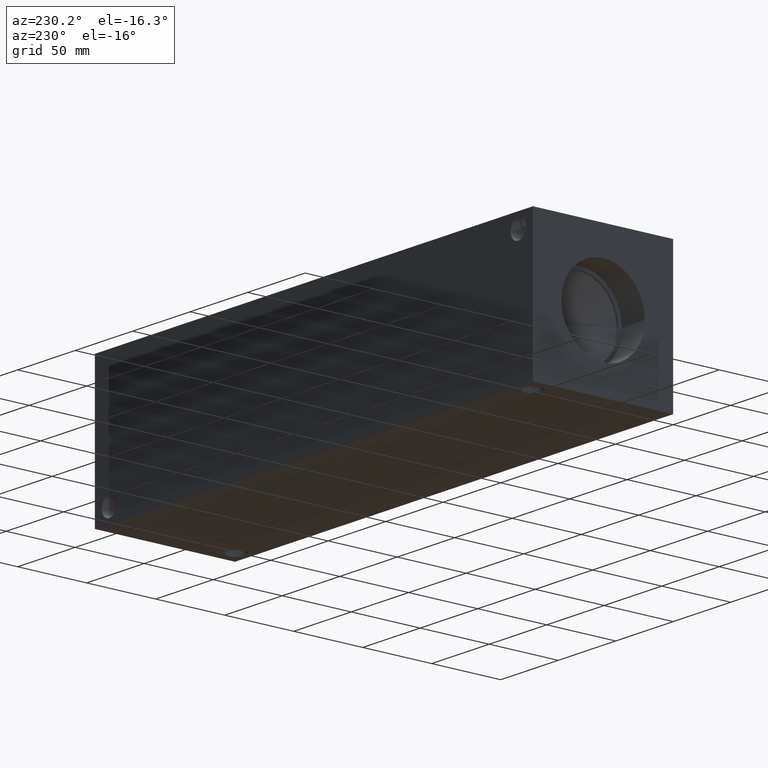
[diagram: clean part render]
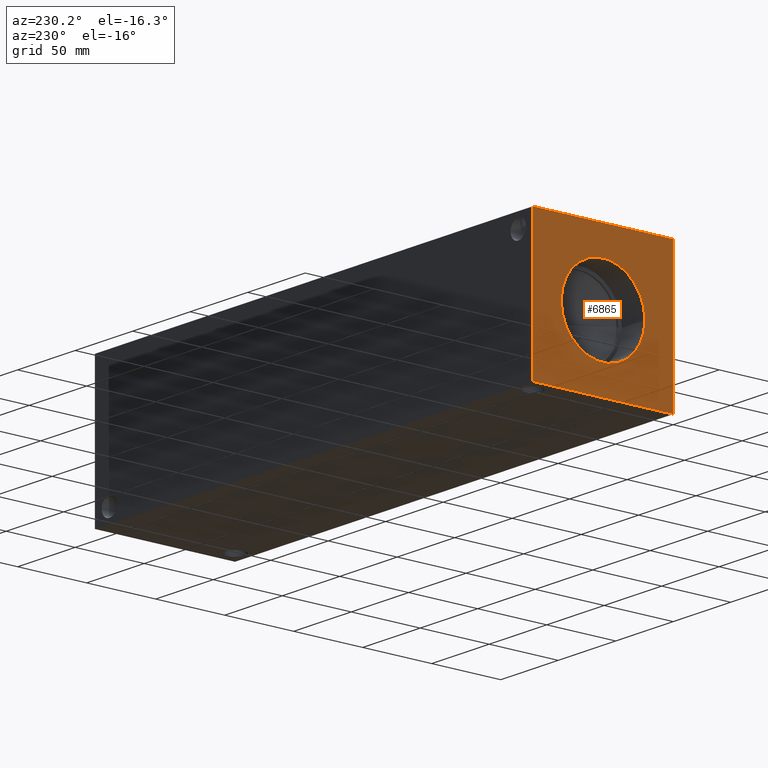
[diagram: same view with one face highlighted and labeled with its STEP entity id]
A machine part, auxiliary view. The second image highlights one B-rep face of the part: STEP entity #6865.
In plain terms, the highlighted planar face has unit normal (-1, 0, 0).
Its self-contained STEP definition (entity closure, byte-faithful):
#90=CIRCLE('',#7182,30.3149);
#91=CIRCLE('',#7183,30.3149);
#130=FACE_BOUND('',#1089,.T.);
#360=PLANE('',#7185);
#705=FACE_OUTER_BOUND('',#1088,.T.);
#1088=EDGE_LOOP('',(#6094,#6095,#6096,#6097));
#1089=EDGE_LOOP('',(#6098,#6099));
#1389=LINE('',#10550,#2085);
#1790=LINE('',#11623,#2486);
#1791=LINE('',#11624,#2487);
#1792=LINE('',#11625,#2488);
#2085=VECTOR('',#7634,10.);
#2486=VECTOR('',#8483,10.);
#2487=VECTOR('',#8484,10.);
#2488=VECTOR('',#8485,10.);
#2986=VERTEX_POINT('',#10543);
#2989=VERTEX_POINT('',#10548);
#3306=VERTEX_POINT('',#11613);
#3307=VERTEX_POINT('',#11614);
#3308=VERTEX_POINT('',#11621);
#3309=VERTEX_POINT('',#11622);
#3771=EDGE_CURVE('',#2989,#2986,#1389,.T.);
#4239=EDGE_CURVE('',#3306,#3307,#90,.T.);
#4240=EDGE_CURVE('',#3307,#3306,#91,.T.);
#4243=EDGE_CURVE('',#3308,#3309,#1790,.T.);
#4244=EDGE_CURVE('',#3309,#2986,#1791,.T.);
#4245=EDGE_CURVE('',#3308,#2989,#1792,.T.);
#6094=ORIENTED_EDGE('',*,*,#4243,.T.);
#6095=ORIENTED_EDGE('',*,*,#4244,.T.);
#6096=ORIENTED_EDGE('',*,*,#3771,.F.);
#6097=ORIENTED_EDGE('',*,*,#4245,.F.);
#6098=ORIENTED_EDGE('',*,*,#4239,.T.);
#6099=ORIENTED_EDGE('',*,*,#4240,.T.);
#6865=ADVANCED_FACE('',(#705,#130),#360,.T.);
#7182=AXIS2_PLACEMENT_3D('',#11615,#8473,#8474);
#7183=AXIS2_PLACEMENT_3D('',#11616,#8475,#8476);
#7185=AXIS2_PLACEMENT_3D('',#11620,#8481,#8482);
#7634=DIRECTION('',(0.,-1.,0.));
#8473=DIRECTION('center_axis',(1.,0.,0.));
#8474=DIRECTION('ref_axis',(0.,1.,0.));
#8475=DIRECTION('center_axis',(1.,0.,0.));
#8476=DIRECTION('ref_axis',(0.,1.,0.));
#8481=DIRECTION('center_axis',(-1.,0.,0.));
#8482=DIRECTION('ref_axis',(0.,-1.,0.));
#8483=DIRECTION('',(0.,-1.,0.));
#8484=DIRECTION('',(0.,0.,1.));
#8485=DIRECTION('',(0.,0.,1.));
#10543=CARTESIAN_POINT('',(0.,0.,101.6));
#10548=CARTESIAN_POINT('',(0.,101.6,101.6));
#10550=CARTESIAN_POINT('',(0.,101.6,101.6));
#11613=CARTESIAN_POINT('',(0.,81.1149,50.8));
#11614=CARTESIAN_POINT('',(0.,20.4851,50.8));
#11615=CARTESIAN_POINT('Origin',(0.,50.8,50.8));
#11616=CARTESIAN_POINT('Origin',(0.,50.8,50.8));
#11620=CARTESIAN_POINT('Origin',(0.,101.6,0.));
#11621=CARTESIAN_POINT('',(0.,101.6,0.));
#11622=CARTESIAN_POINT('',(0.,0.,0.));
#11623=CARTESIAN_POINT('',(0.,101.6,0.));
#11624=CARTESIAN_POINT('',(0.,0.,0.));
#11625=CARTESIAN_POINT('',(0.,101.6,0.));